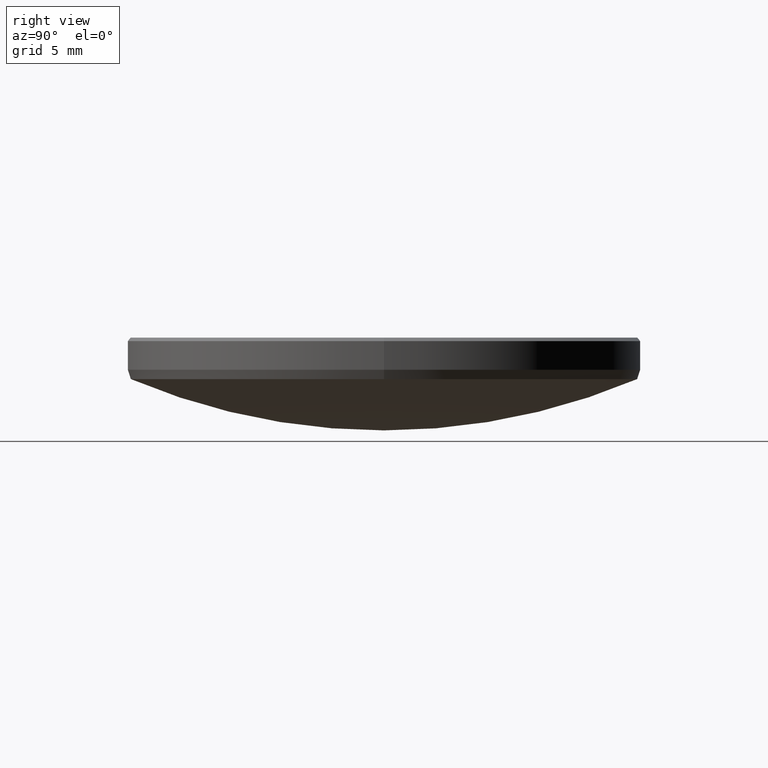
[diagram: clean part render]
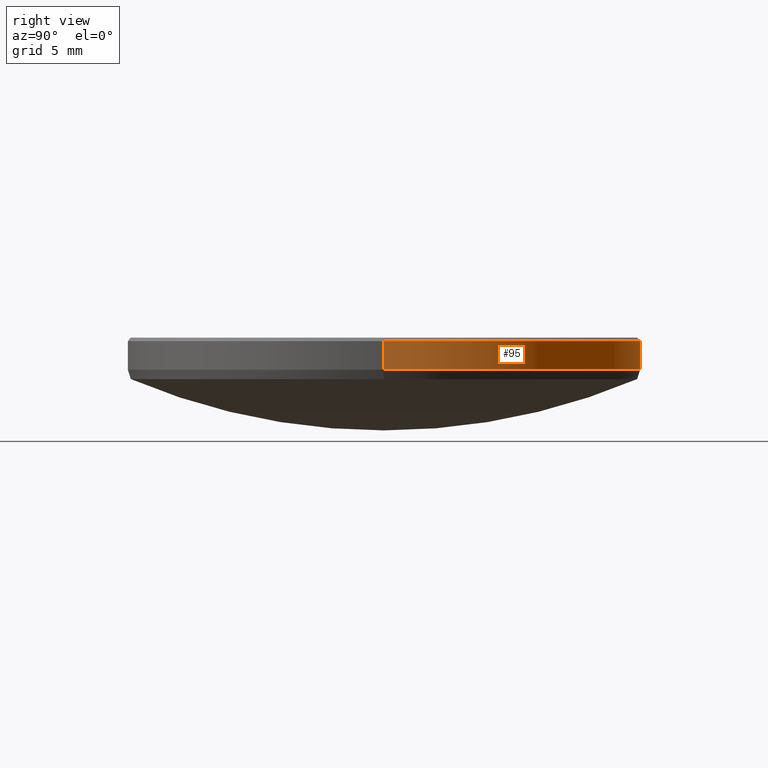
[diagram: same view with one face highlighted and labeled with its STEP entity id]
A machine part, right view. The second image highlights one B-rep face of the part: STEP entity #95.
In plain terms, the highlighted cylindrical surface (partial cylindrical patch) has radius 12.7 mm, axis along (-0, -0, -1).
Its self-contained STEP definition (entity closure, byte-faithful):
#4 = DIRECTION ( 'NONE',  ( 0.000000000000000000, 0.000000000000000000, -1.000000000000000000 ) ) ;
#7 = ORIENTED_EDGE ( 'NONE', *, *, #240, .F. ) ;
#9 = DIRECTION ( 'NONE',  ( -0.000000000000000000, -0.000000000000000000, -1.000000000000000000 ) ) ;
#10 = CARTESIAN_POINT ( 'NONE',  ( 0.000000000000000000, 0.000000000000000000, 5.799999999999999822 ) ) ;
#15 = ORIENTED_EDGE ( 'NONE', *, *, #195, .T. ) ;
#17 = AXIS2_PLACEMENT_3D ( 'NONE', #66, #210, #193 ) ;
#18 = ORIENTED_EDGE ( 'NONE', *, *, #104, .T. ) ;
#48 = EDGE_LOOP ( 'NONE', ( #154, #15, #18, #7 ) ) ;
#60 = CYLINDRICAL_SURFACE ( 'NONE', #188, 12.69999999999999929 ) ;
#63 = AXIS2_PLACEMENT_3D ( 'NONE', #10, #4, #186 ) ;
#66 = CARTESIAN_POINT ( 'NONE',  ( 0.000000000000000000, 0.000000000000000000, 4.382064373895533826 ) ) ;
#77 = VERTEX_POINT ( 'NONE', #290 ) ;
#85 = DIRECTION ( 'NONE',  ( -0.000000000000000000, -0.000000000000000000, -1.000000000000000000 ) ) ;
#95 = ADVANCED_FACE ( 'NONE', ( #111 ), #60, .T. ) ;
#104 = EDGE_CURVE ( 'NONE', #182, #288, #260, .T. ) ;
#109 = VERTEX_POINT ( 'NONE', #324 ) ;
#111 = FACE_OUTER_BOUND ( 'NONE', #48, .T. ) ;
#121 = LINE ( 'NONE', #125, #239 ) ;
#125 = CARTESIAN_POINT ( 'NONE',  ( 12.69999999999999929, 1.555301434917138433E-15, 10.00000000000000000 ) ) ;
#154 = ORIENTED_EDGE ( 'NONE', *, *, #289, .T. ) ;
#158 = CARTESIAN_POINT ( 'NONE',  ( -12.69999999999999929, 0.000000000000000000, 10.00000000000000000 ) ) ;
#168 = DIRECTION ( 'NONE',  ( -1.000000000000000000, 0.000000000000000000, 0.000000000000000000 ) ) ;
#170 = CARTESIAN_POINT ( 'NONE',  ( 0.000000000000000000, 0.000000000000000000, 10.00000000000000000 ) ) ;
#182 = VERTEX_POINT ( 'NONE', #305 ) ;
#186 = DIRECTION ( 'NONE',  ( 1.000000000000000000, 0.000000000000000000, 0.000000000000000000 ) ) ;
#188 = AXIS2_PLACEMENT_3D ( 'NONE', #170, #9, #168 ) ;
#193 = DIRECTION ( 'NONE',  ( -1.000000000000000000, 0.000000000000000000, 0.000000000000000000 ) ) ;
#195 = EDGE_CURVE ( 'NONE', #77, #182, #121, .T. ) ;
#203 = CIRCLE ( 'NONE', #63, 12.69999999999999929 ) ;
#210 = DIRECTION ( 'NONE',  ( -0.000000000000000000, -0.000000000000000000, 1.000000000000000000 ) ) ;
#223 = DIRECTION ( 'NONE',  ( -0.000000000000000000, -0.000000000000000000, -1.000000000000000000 ) ) ;
#239 = VECTOR ( 'NONE', #223, 1000.000000000000000 ) ;
#240 = EDGE_CURVE ( 'NONE', #109, #288, #331, .T. ) ;
#260 = CIRCLE ( 'NONE', #17, 12.69999999999999929 ) ;
#261 = CARTESIAN_POINT ( 'NONE',  ( -12.69999999999999929, 0.000000000000000000, 4.382064373895533826 ) ) ;
#288 = VERTEX_POINT ( 'NONE', #261 ) ;
#289 = EDGE_CURVE ( 'NONE', #109, #77, #203, .T. ) ;
#290 = CARTESIAN_POINT ( 'NONE',  ( 12.69999999999999929, 1.555301434917138433E-15, 5.799999999999999822 ) ) ;
#299 = VECTOR ( 'NONE', #85, 1000.000000000000000 ) ;
#305 = CARTESIAN_POINT ( 'NONE',  ( 12.69999999999999929, 1.555301434917138433E-15, 4.382064373895533826 ) ) ;
#324 = CARTESIAN_POINT ( 'NONE',  ( -12.69999999999999929, 0.000000000000000000, 5.799999999999999822 ) ) ;
#331 = LINE ( 'NONE', #158, #299 ) ;